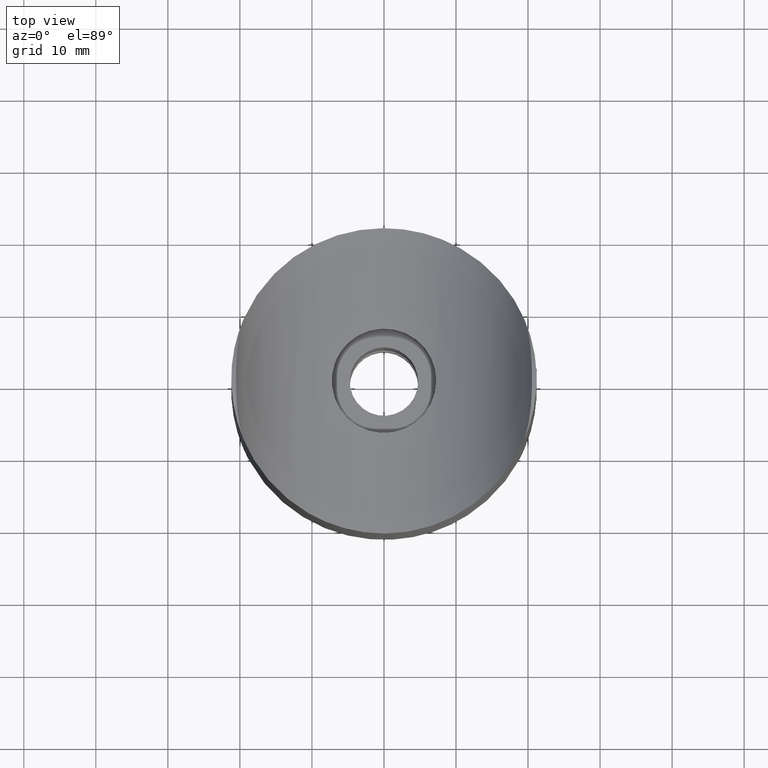
[diagram: clean part render]
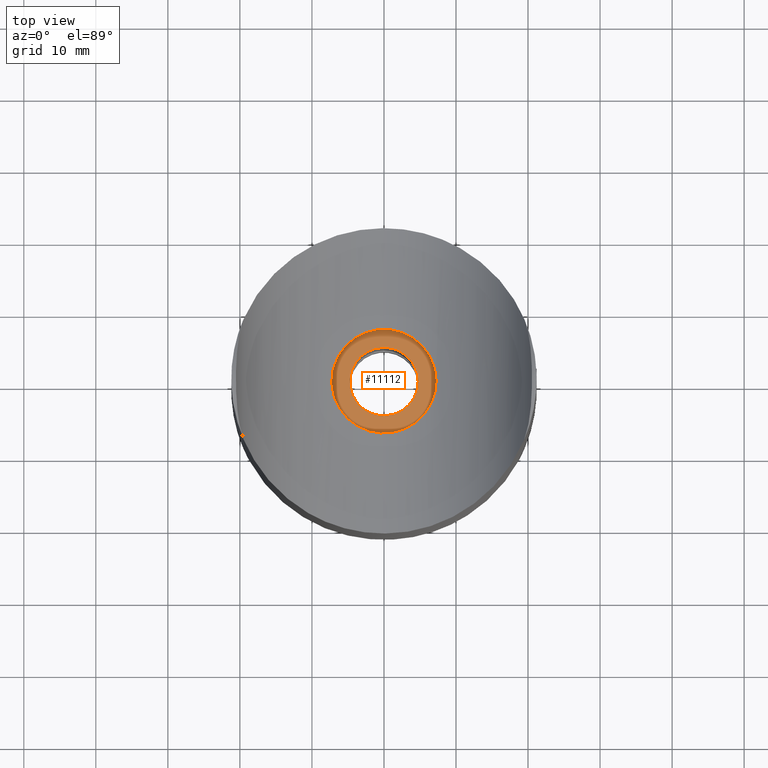
[diagram: same view with one face highlighted and labeled with its STEP entity id]
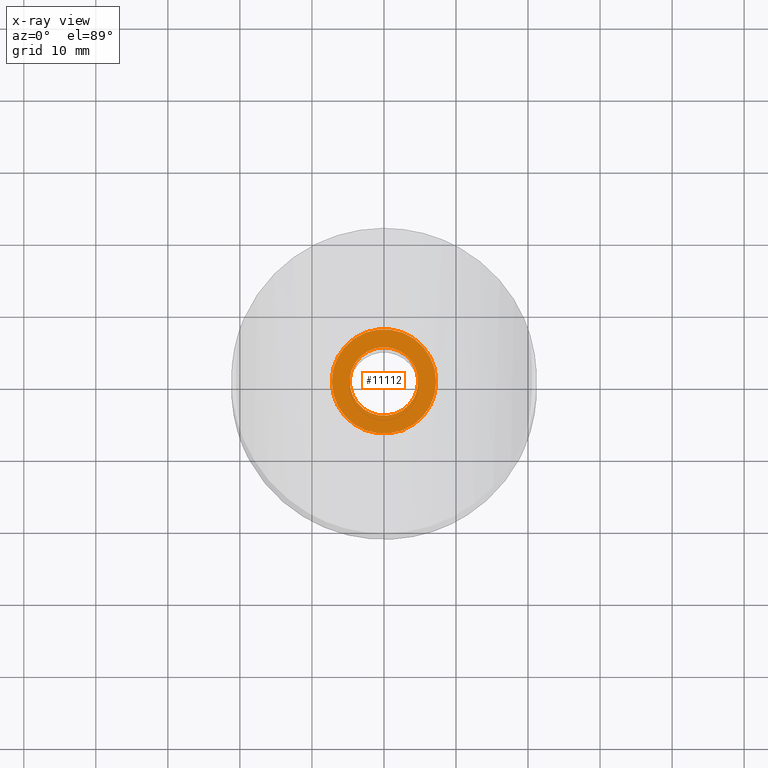
[diagram: x-ray of the same camera — body ghosted, the highlighted face saturated]
A machine part, top view. The second image highlights one B-rep face of the part: STEP entity #11112.
The next image is the same camera in x-ray: the body ghosted, the highlighted face saturated — about 0% of this face is hidden behind the body in this view.
In plain terms, the highlighted planar face has unit normal (0, 0, 1).
Its self-contained STEP definition (entity closure, byte-faithful):
#1387 = EDGE_LOOP ( 'NONE', ( #12890 ) ) ;
#1745 = AXIS2_PLACEMENT_3D ( 'NONE', #3772, #2883, #11282 ) ;
#1796 = PLANE ( 'NONE',  #1745 ) ;
#1943 = CARTESIAN_POINT ( 'NONE',  ( 4.750000000000000000, 0.000000000000000000, 19.50000000000000355 ) ) ;
#2883 = DIRECTION ( 'NONE',  ( 0.000000000000000000, 0.000000000000000000, 1.000000000000000000 ) ) ;
#3440 = CIRCLE ( 'NONE', #5006, 4.750000000000000000 ) ;
#3772 = CARTESIAN_POINT ( 'NONE',  ( 0.000000000000000000, 0.000000000000000000, 19.50000000000000355 ) ) ;
#4771 = EDGE_CURVE ( 'NONE', #7245, #7245, #3440, .T. ) ;
#5006 = AXIS2_PLACEMENT_3D ( 'NONE', #12780, #7414, #8489 ) ;
#6035 = DIRECTION ( 'NONE',  ( 0.000000000000000000, 0.000000000000000000, 1.000000000000000000 ) ) ;
#6684 = FACE_BOUND ( 'NONE', #1387, .T. ) ;
#6885 = ORIENTED_EDGE ( 'NONE', *, *, #13042, .T. ) ;
#7245 = VERTEX_POINT ( 'NONE', #1943 ) ;
#7289 = DIRECTION ( 'NONE',  ( 1.000000000000000000, 0.000000000000000000, 0.000000000000000000 ) ) ;
#7414 = DIRECTION ( 'NONE',  ( -0.000000000000000000, -0.000000000000000000, -1.000000000000000000 ) ) ;
#8228 = FACE_OUTER_BOUND ( 'NONE', #13536, .T. ) ;
#8381 = CARTESIAN_POINT ( 'NONE',  ( 0.000000000000000000, 0.000000000000000000, 19.50000000000000355 ) ) ;
#8489 = DIRECTION ( 'NONE',  ( 1.000000000000000000, 0.000000000000000000, 0.000000000000000000 ) ) ;
#10351 = CIRCLE ( 'NONE', #13721, 7.250000000000000000 ) ;
#10593 = CARTESIAN_POINT ( 'NONE',  ( 7.250000000000000000, 0.000000000000000000, 19.50000000000000355 ) ) ;
#11112 = ADVANCED_FACE ( 'NONE', ( #8228, #6684 ), #1796, .T. ) ;
#11282 = DIRECTION ( 'NONE',  ( 1.000000000000000000, 0.000000000000000000, -0.000000000000000000 ) ) ;
#12039 = VERTEX_POINT ( 'NONE', #10593 ) ;
#12780 = CARTESIAN_POINT ( 'NONE',  ( 0.000000000000000000, 0.000000000000000000, 19.50000000000000355 ) ) ;
#12890 = ORIENTED_EDGE ( 'NONE', *, *, #4771, .T. ) ;
#13042 = EDGE_CURVE ( 'NONE', #12039, #12039, #10351, .T. ) ;
#13536 = EDGE_LOOP ( 'NONE', ( #6885 ) ) ;
#13721 = AXIS2_PLACEMENT_3D ( 'NONE', #8381, #6035, #7289 ) ;